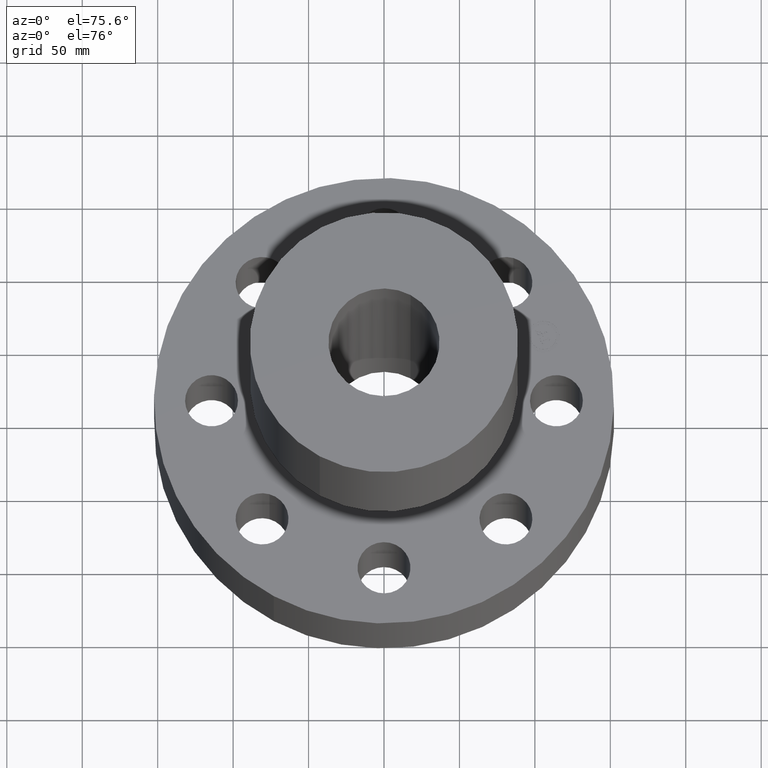
[diagram: clean part render]
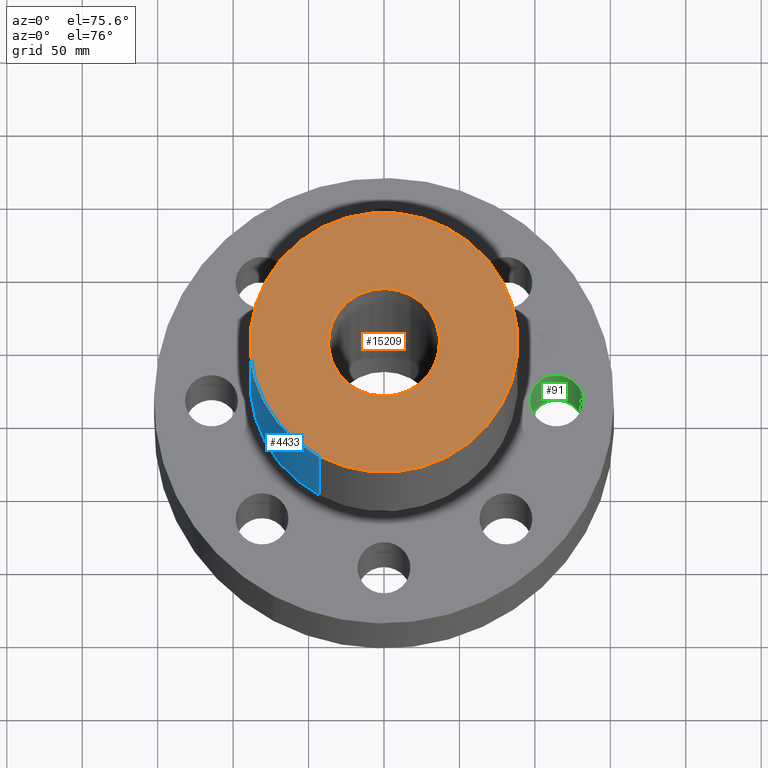
[diagram: same view with three faces highlighted in distinct colors, each labeled with its STEP entity id]
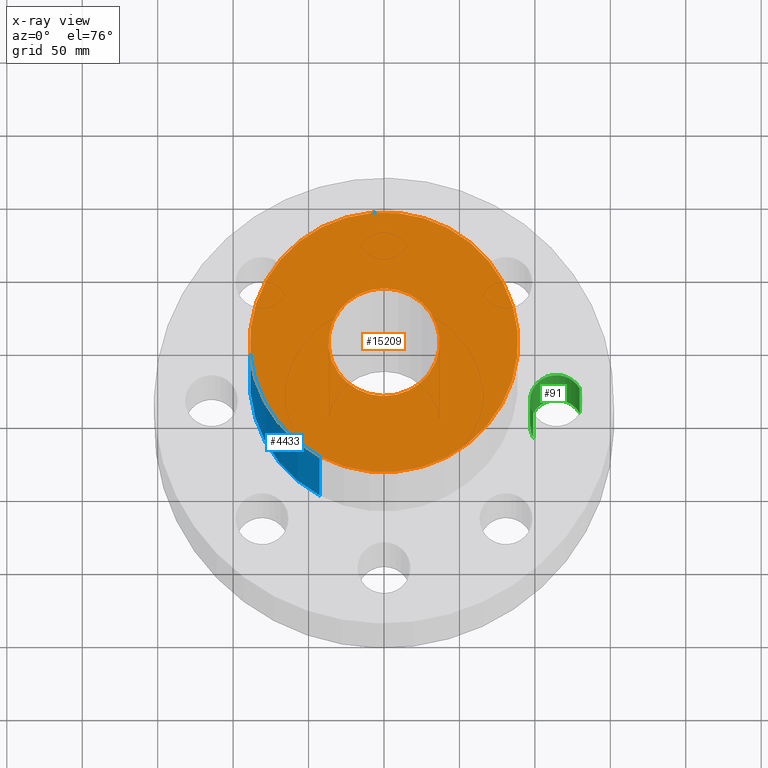
[diagram: x-ray of the same camera — body ghosted, the three highlighted faces saturated]
A machine part, auxiliary view with three faces highlighted in distinct colors.
The next image is the same camera in x-ray (body ghosted, the three faces saturated) — at least one of them is partly hidden behind the body in this view.
Their STEP definitions:

[orange] entity #15209 — the highlighted planar face has unit normal (0, 0, -1).
#4405=AXIS2_PLACEMENT_3D('Circle Axis2P3D',#4403,#4404,$) ;
#4424=AXIS2_PLACEMENT_3D('Circle Axis2P3D',#4422,#4423,$) ;
#15185=AXIS2_PLACEMENT_3D('Plane Axis2P3D',#15182,#15183,#15184) ;
#15193=AXIS2_PLACEMENT_3D('Circle Axis2P3D',#15191,#15192,$) ;
#15202=AXIS2_PLACEMENT_3D('Circle Axis2P3D',#15200,#15201,$) ;
#4400=CARTESIAN_POINT('Vertex',(1.67798938512,3.07153896663,8.75000000003)) ;
#4403=CARTESIAN_POINT('Axis2P3D Location',(0.,0.,8.75000000003)) ;
#4407=CARTESIAN_POINT('Vertex',(-1.67798938512,-3.07153896663,8.75000000003)) ;
#4422=CARTESIAN_POINT('Axis2P3D Location',(0.,0.,8.75000000003)) ;
#15182=CARTESIAN_POINT('Axis2P3D Location',(0.,3.50000000001,8.75000000003)) ;
#15191=CARTESIAN_POINT('Axis2P3D Location',(0.,0.,8.75000000003)) ;
#15195=CARTESIAN_POINT('Vertex',(-0.695167030979,-1.27249471475,8.75000000004)) ;
#15197=CARTESIAN_POINT('Vertex',(0.695167030979,1.27249471475,8.75000000004)) ;
#15200=CARTESIAN_POINT('Axis2P3D Location',(0.,0.,8.75000000003)) ;
#4404=DIRECTION('Axis2P3D Direction',(0.,0.,-0.0393700787402)) ;
#4423=DIRECTION('Axis2P3D Direction',(0.,0.,-0.0393700787402)) ;
#15183=DIRECTION('Axis2P3D Direction',(0.,0.,-0.0393700787402)) ;
#15184=DIRECTION('Axis2P3D XDirection',(0.0393700787402,0.,0.)) ;
#15192=DIRECTION('Axis2P3D Direction',(0.,0.,-0.0393700787402)) ;
#15201=DIRECTION('Axis2P3D Direction',(0.,0.,-0.0393700787402)) ;
#15188=ORIENTED_EDGE('',*,*,#4409,.F.) ;
#15189=ORIENTED_EDGE('',*,*,#4426,.F.) ;
#15206=ORIENTED_EDGE('',*,*,#15199,.T.) ;
#15207=ORIENTED_EDGE('',*,*,#15204,.T.) ;
#15208=FACE_BOUND('',#15205,.T.) ;
#15209=ADVANCED_FACE('PartBody',(#15190,#15208),#15186,.F.) ;
#4406=CIRCLE('generated circle',#4405,3.50000000001) ;
#4425=CIRCLE('generated circle',#4424,3.50000000001) ;
#15194=CIRCLE('generated circle',#15193,1.45000000001) ;
#15203=CIRCLE('generated circle',#15202,1.45000000001) ;
#4409=EDGE_CURVE('',#4401,#4408,#4406,.T.) ;
#4426=EDGE_CURVE('',#4408,#4401,#4425,.T.) ;
#15199=EDGE_CURVE('',#15196,#15198,#15194,.T.) ;
#15204=EDGE_CURVE('',#15198,#15196,#15203,.T.) ;
#15187=EDGE_LOOP('',(#15188,#15189)) ;
#15205=EDGE_LOOP('',(#15206,#15207)) ;
#15190=FACE_OUTER_BOUND('',#15187,.T.) ;
#15186=PLANE('',#15185) ;
#4401=VERTEX_POINT('',#4400) ;
#4408=VERTEX_POINT('',#4407) ;
#15196=VERTEX_POINT('',#15195) ;
#15198=VERTEX_POINT('',#15197) ;

[blue] entity #4433 — the highlighted cylindrical surface (partial cylindrical patch) has radius 88.9 mm, axis along (0, 0, -1).
#1538=AXIS2_PLACEMENT_3D('Circle Axis2P3D',#1536,#1537,$) ;
#4394=AXIS2_PLACEMENT_3D('Cylinder Axis2P3D',#4391,#4392,#4393) ;
#4424=AXIS2_PLACEMENT_3D('Circle Axis2P3D',#4422,#4423,$) ;
#1514=CARTESIAN_POINT('Vertex',(1.67798938512,3.07153896663,4.62518148556)) ;
#1521=CARTESIAN_POINT('Vertex',(-1.67798938512,-3.07153896663,4.62518148556)) ;
#1536=CARTESIAN_POINT('Axis2P3D Location',(0.,0.,4.62518148556)) ;
#4391=CARTESIAN_POINT('Axis2P3D Location',(0.,0.,4.25000000002)) ;
#4396=CARTESIAN_POINT('Line Origine',(1.67798938512,3.07153896663,6.6875907428)) ;
#4400=CARTESIAN_POINT('Vertex',(1.67798938512,3.07153896663,8.75000000003)) ;
#4407=CARTESIAN_POINT('Vertex',(-1.67798938512,-3.07153896663,8.75000000003)) ;
#4410=CARTESIAN_POINT('Line Origine',(-1.67798938512,-3.07153896663,6.6875907428)) ;
#4422=CARTESIAN_POINT('Axis2P3D Location',(0.,0.,8.75000000003)) ;
#1537=DIRECTION('Axis2P3D Direction',(-0.,0.,0.0393700787402)) ;
#4392=DIRECTION('Axis2P3D Direction',(0.,0.,-0.0393700787402)) ;
#4393=DIRECTION('Axis2P3D XDirection',(-0.0188750212049,-0.0345504945626,0.)) ;
#4397=DIRECTION('Vector Direction',(0.,0.,-0.0393700787402)) ;
#4411=DIRECTION('Vector Direction',(0.,0.,-0.0393700787402)) ;
#4423=DIRECTION('Axis2P3D Direction',(0.,0.,-0.0393700787402)) ;
#4398=VECTOR('Line Direction',#4397,0.0393700787402) ;
#4412=VECTOR('Line Direction',#4411,0.0393700787402) ;
#4428=ORIENTED_EDGE('',*,*,#1540,.F.) ;
#4429=ORIENTED_EDGE('',*,*,#4414,.T.) ;
#4430=ORIENTED_EDGE('',*,*,#4426,.T.) ;
#4431=ORIENTED_EDGE('',*,*,#4402,.F.) ;
#4433=ADVANCED_FACE('PartBody',(#4432),#4395,.T.) ;
#1539=CIRCLE('generated circle',#1538,3.50000000001) ;
#4425=CIRCLE('generated circle',#4424,3.50000000001) ;
#4395=CYLINDRICAL_SURFACE('generated cylinder',#4394,3.50000000001) ;
#1540=EDGE_CURVE('',#1522,#1515,#1539,.F.) ;
#4402=EDGE_CURVE('',#1515,#4401,#4399,.F.) ;
#4414=EDGE_CURVE('',#1522,#4408,#4413,.F.) ;
#4426=EDGE_CURVE('',#4408,#4401,#4425,.T.) ;
#4427=EDGE_LOOP('',(#4428,#4429,#4430,#4431)) ;
#4432=FACE_OUTER_BOUND('',#4427,.T.) ;
#4399=LINE('Line',#4396,#4398) ;
#4413=LINE('Line',#4410,#4412) ;
#1515=VERTEX_POINT('',#1514) ;
#1522=VERTEX_POINT('',#1521) ;
#4401=VERTEX_POINT('',#4400) ;
#4408=VERTEX_POINT('',#4407) ;

[green] entity #91 — the highlighted cylindrical surface (edge-blend (fillet) strip) has radius 17.526 mm, axis along (0, -0, 1).
#38=AXIS2_PLACEMENT_3D('Cylinder Axis2P3D',#35,#36,#37) ;
#77=AXIS2_PLACEMENT_3D('Circle Axis2P3D',#75,#76,$) ;
#82=AXIS2_PLACEMENT_3D('Circle Axis2P3D',#80,#81,$) ;
#35=CARTESIAN_POINT('Axis2P3D Location',(4.50000000002,0.,0.00393700787402)) ;
#40=CARTESIAN_POINT('Line Origine',(3.89446803231,-0.330803621638,1.31000000001)) ;
#44=CARTESIAN_POINT('Vertex',(3.89446803231,-0.330803621638,2.62000000001)) ;
#46=CARTESIAN_POINT('Vertex',(3.89446803231,-0.330803621638,2.2401153548E-016)) ;
#53=CARTESIAN_POINT('Vertex',(5.10553196772,0.330803621638,2.62000000001)) ;
#56=CARTESIAN_POINT('Line Origine',(5.10553196772,0.330803621638,1.31000000001)) ;
#60=CARTESIAN_POINT('Vertex',(5.10553196772,0.330803621638,2.2401153548E-016)) ;
#75=CARTESIAN_POINT('Axis2P3D Location',(4.50000000002,0.,2.62000000001)) ;
#80=CARTESIAN_POINT('Axis2P3D Location',(4.50000000002,0.,0.)) ;
#36=DIRECTION('Axis2P3D Direction',(0.,-0.,0.0393700787402)) ;
#37=DIRECTION('Axis2P3D XDirection',(0.0345504945626,0.0188750212049,0.)) ;
#41=DIRECTION('Vector Direction',(0.,0.,0.0393700787402)) ;
#57=DIRECTION('Vector Direction',(0.,0.,0.0393700787402)) ;
#76=DIRECTION('Axis2P3D Direction',(0.,-0.,0.0393700787402)) ;
#81=DIRECTION('Axis2P3D Direction',(0.,-0.,0.0393700787402)) ;
#42=VECTOR('Line Direction',#41,0.0393700787402) ;
#58=VECTOR('Line Direction',#57,0.0393700787402) ;
#86=ORIENTED_EDGE('',*,*,#62,.F.) ;
#87=ORIENTED_EDGE('',*,*,#79,.F.) ;
#88=ORIENTED_EDGE('',*,*,#48,.T.) ;
#89=ORIENTED_EDGE('',*,*,#84,.T.) ;
#91=ADVANCED_FACE('PartBody',(#90),#39,.F.) ;
#78=CIRCLE('generated circle',#77,0.690000000003) ;
#83=CIRCLE('generated circle',#82,0.690000000003) ;
#39=CYLINDRICAL_SURFACE('generated cylinder',#38,0.690000000003) ;
#48=EDGE_CURVE('',#45,#47,#43,.F.) ;
#62=EDGE_CURVE('',#54,#61,#59,.F.) ;
#79=EDGE_CURVE('',#45,#54,#78,.F.) ;
#84=EDGE_CURVE('',#47,#61,#83,.F.) ;
#85=EDGE_LOOP('',(#86,#87,#88,#89)) ;
#90=FACE_OUTER_BOUND('',#85,.T.) ;
#43=LINE('Line',#40,#42) ;
#59=LINE('Line',#56,#58) ;
#45=VERTEX_POINT('',#44) ;
#47=VERTEX_POINT('',#46) ;
#54=VERTEX_POINT('',#53) ;
#61=VERTEX_POINT('',#60) ;